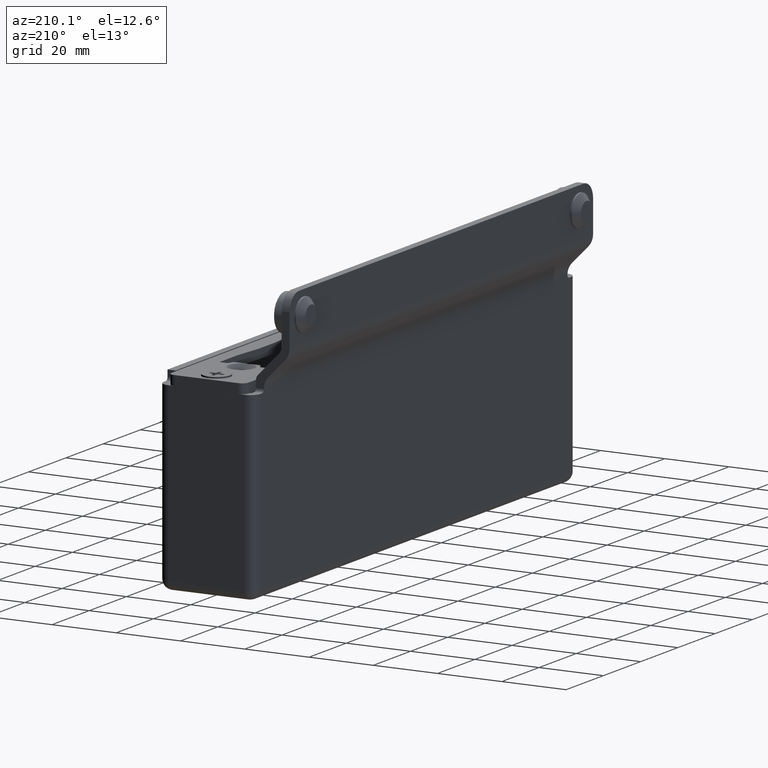
[diagram: clean part render]
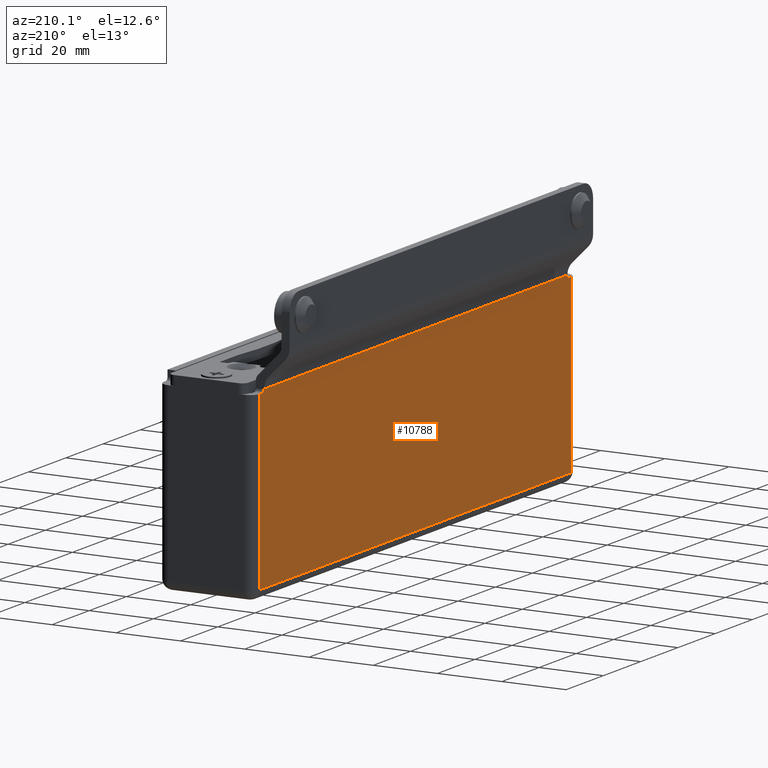
[diagram: same view with one face highlighted and labeled with its STEP entity id]
A machine part, auxiliary view. The second image highlights one B-rep face of the part: STEP entity #10788.
In plain terms, the highlighted planar face has unit normal (1, 0, -0).
Its self-contained STEP definition (entity closure, byte-faithful):
#60 = AXIS2_PLACEMENT_3D ( 'NONE', #333, #1510, #9496 ) ;
#333 = CARTESIAN_POINT ( 'NONE',  ( -14.99999999999999467, -82.45803989154978808, 28.00000000000000711 ) ) ;
#337 = DIRECTION ( 'NONE',  ( 0.000000000000000000, -1.000000000000000000, 0.000000000000000000 ) ) ;
#964 = EDGE_CURVE ( 'NONE', #3349, #10962, #10477, .T. ) ;
#1138 = DIRECTION ( 'NONE',  ( 1.000000000000000000, 0.000000000000000000, -1.156482317317871478E-16 ) ) ;
#1348 = VERTEX_POINT ( 'NONE', #3636 ) ;
#1510 = DIRECTION ( 'NONE',  ( 1.000000000000000000, 0.000000000000000000, -1.156482317317871478E-16 ) ) ;
#1673 = LINE ( 'NONE', #5007, #10379 ) ;
#1993 = LINE ( 'NONE', #5264, #13938 ) ;
#2297 = CARTESIAN_POINT ( 'NONE',  ( -15.00000000000000178, 83.49999999999998579, -29.99999999999999645 ) ) ;
#2448 = ORIENTED_EDGE ( 'NONE', *, *, #5381, .T. ) ;
#3349 = VERTEX_POINT ( 'NONE', #14194 ) ;
#3533 = VERTEX_POINT ( 'NONE', #6802 ) ;
#3636 = CARTESIAN_POINT ( 'NONE',  ( -15.00000000000000178, 83.49999999999998579, 27.00000000000000711 ) ) ;
#3731 = EDGE_CURVE ( 'NONE', #9908, #3533, #8227, .T. ) ;
#3783 = LINE ( 'NONE', #6911, #8657 ) ;
#3784 = VECTOR ( 'NONE', #14144, 1000.000000000000000 ) ;
#4179 = VERTEX_POINT ( 'NONE', #11543 ) ;
#4186 = CIRCLE ( 'NONE', #60, 1.000000000000000888 ) ;
#4641 = DIRECTION ( 'NONE',  ( -0.000000000000000000, 1.000000000000000000, -6.938893903907222461E-16 ) ) ;
#5007 = CARTESIAN_POINT ( 'NONE',  ( -15.00000000000000178, -83.49999999999998579, -29.99999999999999645 ) ) ;
#5264 = CARTESIAN_POINT ( 'NONE',  ( -14.99999999999999467, 86.50000000000000000, 27.92893218813454226 ) ) ;
#5345 = PLANE ( 'NONE',  #10594 ) ;
#5381 = EDGE_CURVE ( 'NONE', #3533, #10962, #1673, .T. ) ;
#5483 = VECTOR ( 'NONE', #337, 1000.000000000000000 ) ;
#5618 = CARTESIAN_POINT ( 'NONE',  ( -14.99999999999999467, 82.45803989154978808, 28.00000000000000711 ) ) ;
#5672 = DIRECTION ( 'NONE',  ( 0.000000000000000000, 0.000000000000000000, -1.000000000000000000 ) ) ;
#5717 = FACE_OUTER_BOUND ( 'NONE', #6910, .T. ) ;
#6110 = ORIENTED_EDGE ( 'NONE', *, *, #964, .F. ) ;
#6802 = CARTESIAN_POINT ( 'NONE',  ( -15.00000000000000178, -83.49999999999998579, -26.99999999999999645 ) ) ;
#6910 = EDGE_LOOP ( 'NONE', ( #11508, #14100, #10671, #8419, #14358, #9312, #2448, #6110 ) ) ;
#6911 = CARTESIAN_POINT ( 'NONE',  ( -15.00000000000000178, 86.45803989154978808, 27.00000000000000355 ) ) ;
#6953 = EDGE_CURVE ( 'NONE', #8058, #11658, #7239, .T. ) ;
#7141 = EDGE_CURVE ( 'NONE', #4179, #8058, #1993, .T. ) ;
#7239 = CIRCLE ( 'NONE', #9817, 1.000000000000000888 ) ;
#8058 = VERTEX_POINT ( 'NONE', #10492 ) ;
#8060 = EDGE_CURVE ( 'NONE', #1348, #9908, #9952, .T. ) ;
#8227 = LINE ( 'NONE', #9184, #5483 ) ;
#8419 = ORIENTED_EDGE ( 'NONE', *, *, #8705, .T. ) ;
#8657 = VECTOR ( 'NONE', #4641, 1000.000000000000000 ) ;
#8705 = EDGE_CURVE ( 'NONE', #11658, #1348, #3783, .T. ) ;
#9184 = CARTESIAN_POINT ( 'NONE',  ( -15.00000000000000178, 86.50000000000000000, -26.99999999999999645 ) ) ;
#9312 = ORIENTED_EDGE ( 'NONE', *, *, #3731, .T. ) ;
#9496 = DIRECTION ( 'NONE',  ( 0.000000000000000000, 0.000000000000000000, -1.000000000000000000 ) ) ;
#9817 = AXIS2_PLACEMENT_3D ( 'NONE', #5618, #1138, #5672 ) ;
#9908 = VERTEX_POINT ( 'NONE', #14986 ) ;
#9952 = LINE ( 'NONE', #2297, #14085 ) ;
#10379 = VECTOR ( 'NONE', #13094, 1000.000000000000000 ) ;
#10477 = LINE ( 'NONE', #10763, #3784 ) ;
#10492 = CARTESIAN_POINT ( 'NONE',  ( -14.99999999999999467, 81.46056840518204467, 27.92893218813453871 ) ) ;
#10594 = AXIS2_PLACEMENT_3D ( 'NONE', #12131, #14454, #12176 ) ;
#10671 = ORIENTED_EDGE ( 'NONE', *, *, #6953, .T. ) ;
#10763 = CARTESIAN_POINT ( 'NONE',  ( -15.00000000000000178, -86.45803989154978808, 27.00000000000000355 ) ) ;
#10788 = ADVANCED_FACE ( 'NONE', ( #5717 ), #5345, .F. ) ;
#10962 = VERTEX_POINT ( 'NONE', #12417 ) ;
#11508 = ORIENTED_EDGE ( 'NONE', *, *, #14143, .T. ) ;
#11543 = CARTESIAN_POINT ( 'NONE',  ( -14.99999999999999467, -81.46056840518204467, 27.92893218813453871 ) ) ;
#11635 = DIRECTION ( 'NONE',  ( -1.156482317317871478E-16, -0.000000000000000000, -1.000000000000000000 ) ) ;
#11658 = VERTEX_POINT ( 'NONE', #12313 ) ;
#12131 = CARTESIAN_POINT ( 'NONE',  ( -15.00000000000000178, 86.50000000000000000, -29.99999999999999645 ) ) ;
#12176 = DIRECTION ( 'NONE',  ( -1.156482317317871478E-16, 0.000000000000000000, -1.000000000000000000 ) ) ;
#12301 = DIRECTION ( 'NONE',  ( -0.000000000000000000, 1.000000000000000000, -0.000000000000000000 ) ) ;
#12313 = CARTESIAN_POINT ( 'NONE',  ( -15.00000000000000178, 82.45803989154978808, 27.00000000000000711 ) ) ;
#12417 = CARTESIAN_POINT ( 'NONE',  ( -15.00000000000000178, -83.49999999999998579, 27.00000000000000711 ) ) ;
#13094 = DIRECTION ( 'NONE',  ( 1.156482317317871478E-16, -0.000000000000000000, 1.000000000000000000 ) ) ;
#13938 = VECTOR ( 'NONE', #12301, 1000.000000000000000 ) ;
#14085 = VECTOR ( 'NONE', #11635, 1000.000000000000000 ) ;
#14100 = ORIENTED_EDGE ( 'NONE', *, *, #7141, .T. ) ;
#14143 = EDGE_CURVE ( 'NONE', #3349, #4179, #4186, .T. ) ;
#14144 = DIRECTION ( 'NONE',  ( 0.000000000000000000, -1.000000000000000000, -6.938893903907222461E-16 ) ) ;
#14194 = CARTESIAN_POINT ( 'NONE',  ( -15.00000000000000178, -82.45803989154978808, 27.00000000000000711 ) ) ;
#14358 = ORIENTED_EDGE ( 'NONE', *, *, #8060, .T. ) ;
#14454 = DIRECTION ( 'NONE',  ( 1.000000000000000000, 0.000000000000000000, -1.156482317317871478E-16 ) ) ;
#14986 = CARTESIAN_POINT ( 'NONE',  ( -15.00000000000000178, 83.49999999999998579, -26.99999999999999645 ) ) ;